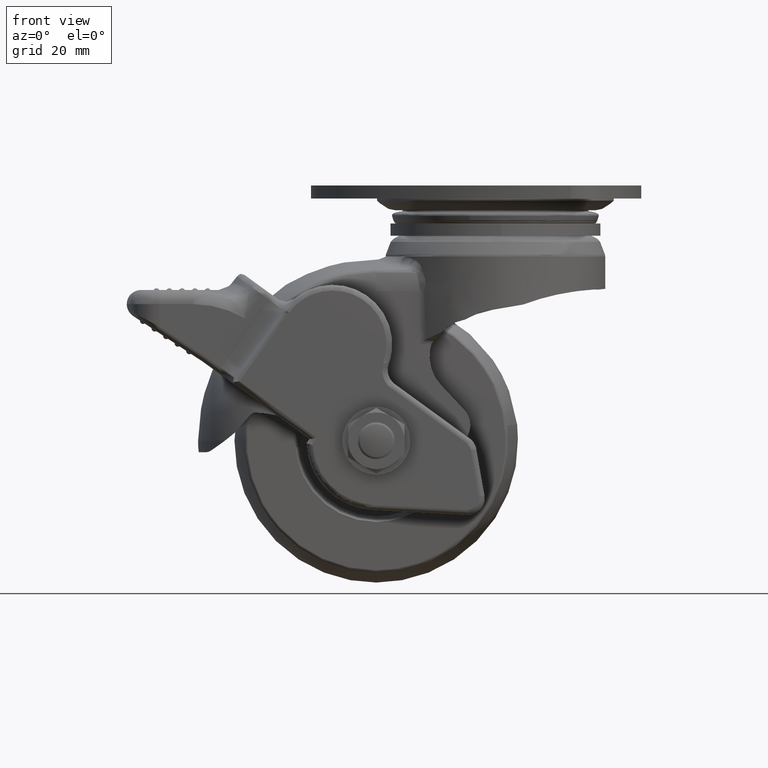
[diagram: clean part render]
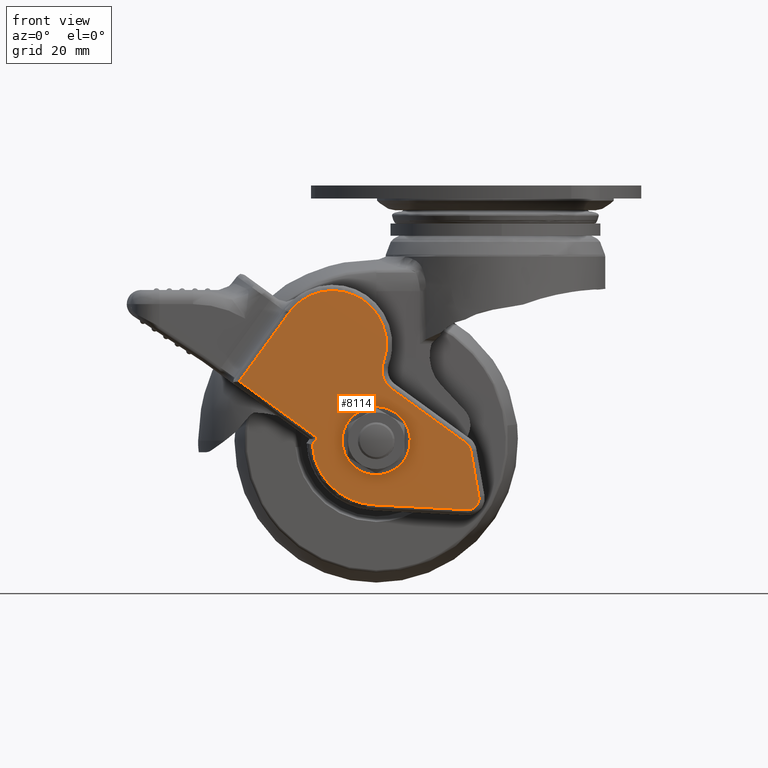
[diagram: same view with one face highlighted and labeled with its STEP entity id]
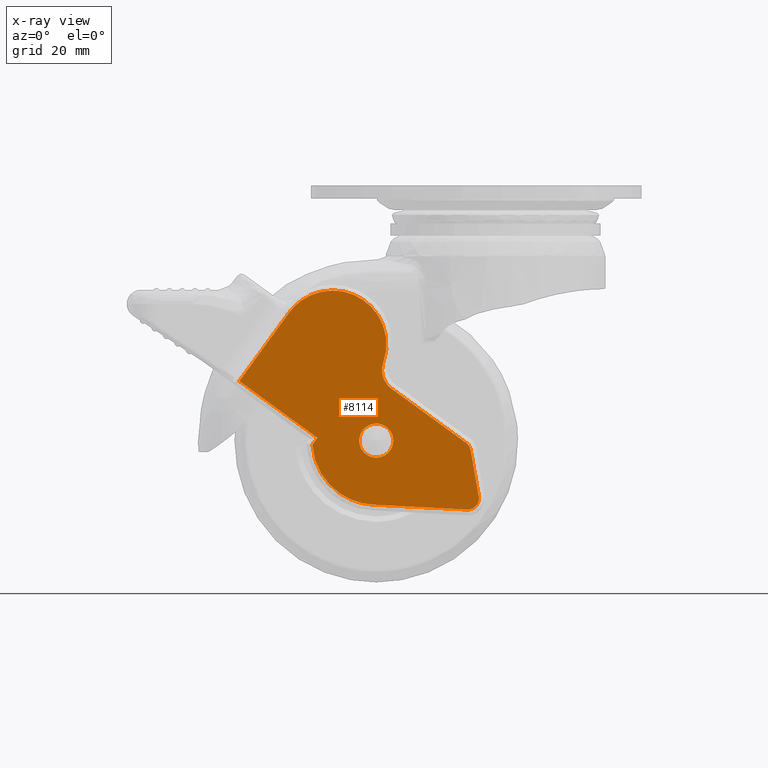
[diagram: x-ray of the same camera — body ghosted, the highlighted face saturated]
A machine part, front view. The second image highlights one B-rep face of the part: STEP entity #8114.
The next image is the same camera in x-ray: the body ghosted, the highlighted face saturated — about 0% of this face is hidden behind the body in this view.
In plain terms, the highlighted face is a freeform B-spline surface patch.
Its self-contained STEP definition (entity closure, byte-faithful):
#87=CARTESIAN_POINT('',(-22.856098769992840,-23.100000000000001,-42.643117025390609));
#88=VERTEX_POINT('',#87);
#94=CARTESIAN_POINT('',(-21.0,-23.100000000000001,-48.0));
#95=VERTEX_POINT('',#94);
#96=CARTESIAN_POINT('',(-22.856098769992837,-23.100000000000009,-42.643117025390609));
#97=CARTESIAN_POINT('',(-23.999999999999996,-23.100000000000005,-43.543965174776453));
#98=CARTESIAN_POINT('',(-24.0,-23.100000000000001,-45.0));
#99=CARTESIAN_POINT('',(-23.999999999999996,-23.100000000000001,-48.000000000000014));
#100=CARTESIAN_POINT('',(-21.0,-23.100000000000001,-48.0));
#108=(BOUNDED_CURVE()B_SPLINE_CURVE(2,(#96,#97,#98,#99,#100),.UNSPECIFIED.,.F.,.U.)B_SPLINE_CURVE_WITH_KNOTS((3,2,3),(0.107127276430993,0.250000000000000,0.500000000000000),.UNSPECIFIED.)CURVE()GEOMETRIC_REPRESENTATION_ITEM()RATIONAL_B_SPLINE_CURVE((0.856547314594228,0.832614192452916,1.0,0.707106781186548,1.0))REPRESENTATION_ITEM(''));
#109=EDGE_CURVE('',#88,#95,#108,.T.);
#111=CARTESIAN_POINT('',(-18.753132128612059,-23.100000000000001,-43.012140656755740));
#112=VERTEX_POINT('',#111);
#113=CARTESIAN_POINT('',(-21.0,-23.100000000000001,-48.0));
#114=CARTESIAN_POINT('',(-18.000000000000007,-23.100000000000001,-48.000000000000014));
#115=CARTESIAN_POINT('',(-18.0,-23.100000000000001,-45.0));
#116=CARTESIAN_POINT('',(-18.000000000000004,-23.099999999999998,-43.863402285723005));
#117=CARTESIAN_POINT('',(-18.753132128612062,-23.099999999999998,-43.012140656755733));
#125=(BOUNDED_CURVE()B_SPLINE_CURVE(2,(#113,#114,#115,#116,#117),.UNSPECIFIED.,.F.,.U.)B_SPLINE_CURVE_WITH_KNOTS((3,2,3),(0.500000000000000,0.750000000000000,0.865779834191141),.UNSPECIFIED.)CURVE()GEOMETRIC_REPRESENTATION_ITEM()RATIONAL_B_SPLINE_CURVE((1.0,0.707106781186548,1.0,0.864355486760276,0.854350167535218))REPRESENTATION_ITEM(''));
#126=EDGE_CURVE('',#95,#112,#125,.T.);
#198=CARTESIAN_POINT('',(-21.0,-23.100000000000001,-41.999999999999993));
#199=VERTEX_POINT('',#198);
#200=CARTESIAN_POINT('',(-18.753132128612062,-23.099999999999998,-43.012140656755733));
#201=CARTESIAN_POINT('',(-19.648597895348875,-23.099999999999994,-42.0));
#202=CARTESIAN_POINT('',(-21.0,-23.100000000000001,-41.999999999999993));
#210=(BOUNDED_CURVE()B_SPLINE_CURVE(2,(#200,#201,#202),.UNSPECIFIED.,.F.,.U.)B_SPLINE_CURVE_WITH_KNOTS((3,3),(0.865779834191141,1.0),.UNSPECIFIED.)CURVE()GEOMETRIC_REPRESENTATION_ITEM()RATIONAL_B_SPLINE_CURVE((0.854350167535218,0.842751294426272,1.0))REPRESENTATION_ITEM(''));
#211=EDGE_CURVE('',#112,#199,#210,.T.);
#213=CARTESIAN_POINT('',(-21.0,-23.100000000000001,-41.999999999999993));
#214=CARTESIAN_POINT('',(-22.039465737141537,-23.099999999999998,-41.999999999999993));
#215=CARTESIAN_POINT('',(-22.856098769992848,-23.100000000000005,-42.643117025390609));
#223=(BOUNDED_CURVE()B_SPLINE_CURVE(2,(#213,#214,#215),.UNSPECIFIED.,.F.,.U.)B_SPLINE_CURVE_WITH_KNOTS((3,3),(0.0,0.107127276430993),.UNSPECIFIED.)CURVE()GEOMETRIC_REPRESENTATION_ITEM()RATIONAL_B_SPLINE_CURVE((1.0,0.874492588733632,0.856547314594228))REPRESENTATION_ITEM(''));
#224=EDGE_CURVE('',#199,#88,#223,.T.);
#4781=CARTESIAN_POINT('',(-19.746865843460750,-23.100000000000001,-31.228028126022249));
#4782=VERTEX_POINT('',#4781);
#4815=CARTESIAN_POINT('',(-36.375663025766947,-23.100000000000001,-22.439333280015500));
#4816=VERTEX_POINT('',#4815);
#4830=CARTESIAN_POINT('',(-19.746865843460750,-23.100000000000001,-31.228028126022249));
#4831=CARTESIAN_POINT('',(-16.968023244275305,-23.099999999999998,-23.473388399506373));
#4832=CARTESIAN_POINT('',(-24.250902177111069,-23.100000000000001,-19.624222525091181));
#4833=CARTESIAN_POINT('',(-31.533781109946840,-23.099999999999998,-15.775056650675985));
#4834=CARTESIAN_POINT('',(-36.375663025766947,-23.100000000000001,-22.439333280015500));
#4842=(BOUNDED_CURVE()B_SPLINE_CURVE(2,(#4830,#4831,#4832,#4833,#4834),.UNSPECIFIED.,.F.,.U.)B_SPLINE_CURVE_WITH_KNOTS((3,2,3),(0.0,0.500000000000000,1.0),.UNSPECIFIED.)CURVE()GEOMETRIC_REPRESENTATION_ITEM()RATIONAL_B_SPLINE_CURVE((1.0,0.755525062482082,1.0,0.755525062482082,1.0))REPRESENTATION_ITEM(''));
#4843=EDGE_CURVE('',#4782,#4816,#4842,.T.);
#4868=CARTESIAN_POINT('',(-45.142111756922503,-23.100000000000001,-34.505316172214663));
#4869=VERTEX_POINT('',#4868);
#4883=CARTESIAN_POINT('',(-36.375663025766947,-23.100000000000001,-22.439333280015500));
#4884=CARTESIAN_POINT('',(-45.142111756922503,-23.100000000000001,-34.505316172214663));
#4885=QUASI_UNIFORM_CURVE('',1,(#4883,#4884),.UNSPECIFIED.,.F.,.U.);
#4886=EDGE_CURVE('',#4816,#4869,#4885,.T.);
#4909=CARTESIAN_POINT('',(-18.332475755699651,-23.100000000000001,-35.813457628628257));
#4910=VERTEX_POINT('',#4909);
#4940=CARTESIAN_POINT('',(-18.332475755699651,-23.100000000000001,-35.813457628628257));
#4941=CARTESIAN_POINT('',(-20.758429708002947,-23.099999999999991,-34.050899444325687));
#4942=CARTESIAN_POINT('',(-19.746865843460782,-23.100000000000001,-31.228028126022242));
#4950=(BOUNDED_CURVE()B_SPLINE_CURVE(2,(#4940,#4941,#4942),.UNSPECIFIED.,.F.,.U.)CURVE()GEOMETRIC_REPRESENTATION_ITEM()QUASI_UNIFORM_CURVE()RATIONAL_B_SPLINE_CURVE((1.0,0.800130208874547,1.0))REPRESENTATION_ITEM(''));
#4951=EDGE_CURVE('',#4910,#4782,#4950,.T.);
#4979=CARTESIAN_POINT('',(-31.388823780488199,-23.100000000000001,-44.497664494435902));
#4980=VERTEX_POINT('',#4979);
#4994=CARTESIAN_POINT('',(-45.142111756922503,-23.100000000000001,-34.505316172214663));
#4995=CARTESIAN_POINT('',(-31.388823780488199,-23.100000000000001,-44.497664494435902));
#4996=QUASI_UNIFORM_CURVE('',1,(#4994,#4995),.UNSPECIFIED.,.F.,.U.);
#4997=EDGE_CURVE('',#4869,#4980,#4996,.T.);
#5016=CARTESIAN_POINT('',(-5.151023325881050,-23.100000000000001,-45.390343134423901));
#5017=VERTEX_POINT('',#5016);
#5039=CARTESIAN_POINT('',(-5.151023325881050,-23.100000000000001,-45.390343134423901));
#5040=CARTESIAN_POINT('',(-18.332475755699651,-23.100000000000001,-35.813457628628257));
#5041=QUASI_UNIFORM_CURVE('',1,(#5039,#5040),.UNSPECIFIED.,.F.,.U.);
#5042=EDGE_CURVE('',#5017,#4910,#5041,.T.);
#5063=CARTESIAN_POINT('',(-32.277026720861997,-23.100000000000001,-45.720170662352402));
#5064=VERTEX_POINT('',#5063);
#5095=CARTESIAN_POINT('',(-31.388823780488199,-23.100000000000001,-44.497664494435902));
#5096=CARTESIAN_POINT('',(-32.277026720861997,-23.100000000000001,-45.720170662352402));
#5097=QUASI_UNIFORM_CURVE('',1,(#5095,#5096),.UNSPECIFIED.,.F.,.U.);
#5098=EDGE_CURVE('',#4980,#5064,#5097,.T.);
#5126=CARTESIAN_POINT('',(-4.356978493975499,-23.100000000000001,-46.661080644666299));
#5127=VERTEX_POINT('',#5126);
#5157=CARTESIAN_POINT('',(-4.356978493975510,-23.100000000000001,-46.661080644666299));
#5158=CARTESIAN_POINT('',(-4.497295308502892,-23.099999999999998,-45.865304445450569));
#5159=CARTESIAN_POINT('',(-5.151023325881059,-23.100000000000001,-45.390343134423922));
#5167=(BOUNDED_CURVE()B_SPLINE_CURVE(2,(#5157,#5158,#5159),.UNSPECIFIED.,.F.,.U.)CURVE()GEOMETRIC_REPRESENTATION_ITEM()QUASI_UNIFORM_CURVE()RATIONAL_B_SPLINE_CURVE((1.0,0.927183874192003,1.0))REPRESENTATION_ITEM(''));
#5168=EDGE_CURVE('',#5127,#5017,#5167,.T.);
#5192=CARTESIAN_POINT('',(-21.591395282448399,-23.100000000000001,-56.284513743937097));
#5193=VERTEX_POINT('',#5192);
#5207=CARTESIAN_POINT('',(-32.277026720861862,-23.100000000000001,-45.720170662352402));
#5208=CARTESIAN_POINT('',(-31.635987105807590,-23.099999999999991,-55.758099013285779));
#5209=CARTESIAN_POINT('',(-21.591395282448399,-23.100000000000001,-56.284513743937133));
#5217=(BOUNDED_CURVE()B_SPLINE_CURVE(2,(#5207,#5208,#5209),.UNSPECIFIED.,.F.,.U.)CURVE()GEOMETRIC_REPRESENTATION_ITEM()QUASI_UNIFORM_CURVE()RATIONAL_B_SPLINE_CURVE((1.0,0.746951850098608,1.0))REPRESENTATION_ITEM(''));
#5218=EDGE_CURVE('',#5064,#5193,#5217,.T.);
#5251=CARTESIAN_POINT('',(-2.920145505379240,-23.100000000000001,-54.809768579992401));
#5252=VERTEX_POINT('',#5251);
#5274=CARTESIAN_POINT('',(-2.920145505379240,-23.100000000000001,-54.809768579992401));
#5275=CARTESIAN_POINT('',(-4.356978493975499,-23.100000000000001,-46.661080644666299));
#5276=QUASI_UNIFORM_CURVE('',1,(#5274,#5275),.UNSPECIFIED.,.F.,.U.);
#5277=EDGE_CURVE('',#5252,#5127,#5276,.T.);
#5298=CARTESIAN_POINT('',(-4.994432912485800,-23.100000000000001,-57.154324069509187));
#5299=VERTEX_POINT('',#5298);
#5315=CARTESIAN_POINT('',(-21.591395282448399,-23.100000000000001,-56.284513743937097));
#5316=CARTESIAN_POINT('',(-4.994432912485800,-23.100000000000001,-57.154324069509187));
#5317=QUASI_UNIFORM_CURVE('',1,(#5315,#5316),.UNSPECIFIED.,.F.,.U.);
#5318=EDGE_CURVE('',#5193,#5299,#5317,.T.);
#5347=CARTESIAN_POINT('',(-4.994432912485802,-23.100000000000001,-57.154324069509236));
#5348=CARTESIAN_POINT('',(-4.031069478566166,-23.099999999999998,-57.204811807723459));
#5349=CARTESIAN_POINT('',(-3.391849536664271,-23.100000000000001,-56.482305071839043));
#5350=CARTESIAN_POINT('',(-2.752629594762377,-23.099999999999998,-55.759798335954621));
#5351=CARTESIAN_POINT('',(-2.920145505379237,-23.100000000000001,-54.809768579992401));
#5359=(BOUNDED_CURVE()B_SPLINE_CURVE(2,(#5347,#5348,#5349,#5350,#5351),.UNSPECIFIED.,.F.,.U.)B_SPLINE_CURVE_WITH_KNOTS((3,2,3),(0.0,0.500000000000000,1.0),.UNSPECIFIED.)CURVE()GEOMETRIC_REPRESENTATION_ITEM()RATIONAL_B_SPLINE_CURVE((1.0,0.900698235756252,1.0,0.900698235756252,1.0))REPRESENTATION_ITEM(''));
#5360=EDGE_CURVE('',#5299,#5252,#5359,.T.);
#8090=CARTESIAN_POINT('',(-47.252616422125520,-23.100000000000001,-16.594037108221901));
#8091=CARTESIAN_POINT('',(-0.779283624402634,-23.100000000000001,-16.594037108221901));
#8092=CARTESIAN_POINT('',(-47.252616422125520,-23.100000000000001,-59.086739453107583));
#8093=CARTESIAN_POINT('',(-0.779283624402634,-23.100000000000001,-59.086739453107583));
#8094=B_SPLINE_SURFACE_WITH_KNOTS('',1,1,((#8090,#8092),(#8091,#8093)),.UNSPECIFIED.,.F.,.F.,.U.,(2,2),(2,2),(0.0,46.473332797722883),(0.0,42.492702344885679),.UNSPECIFIED.);
#8095=ORIENTED_EDGE('',*,*,#4951,.T.);
#8096=ORIENTED_EDGE('',*,*,#4843,.T.);
#8097=ORIENTED_EDGE('',*,*,#4886,.T.);
#8098=ORIENTED_EDGE('',*,*,#4997,.T.);
#8099=ORIENTED_EDGE('',*,*,#5098,.T.);
#8100=ORIENTED_EDGE('',*,*,#5218,.T.);
#8101=ORIENTED_EDGE('',*,*,#5318,.T.);
#8102=ORIENTED_EDGE('',*,*,#5360,.T.);
#8103=ORIENTED_EDGE('',*,*,#5277,.T.);
#8104=ORIENTED_EDGE('',*,*,#5168,.T.);
#8105=ORIENTED_EDGE('',*,*,#5042,.T.);
#8106=EDGE_LOOP('',(#8095,#8096,#8097,#8098,#8099,#8100,#8101,#8102,#8103,#8104,#8105));
#8107=FACE_OUTER_BOUND('',#8106,.T.);
#8108=ORIENTED_EDGE('',*,*,#126,.F.);
#8109=ORIENTED_EDGE('',*,*,#109,.F.);
#8110=ORIENTED_EDGE('',*,*,#224,.F.);
#8111=ORIENTED_EDGE('',*,*,#211,.F.);
#8112=EDGE_LOOP('',(#8108,#8109,#8110,#8111));
#8113=FACE_BOUND('',#8112,.T.);
#8114=ADVANCED_FACE('',(#8107,#8113),#8094,.F.);